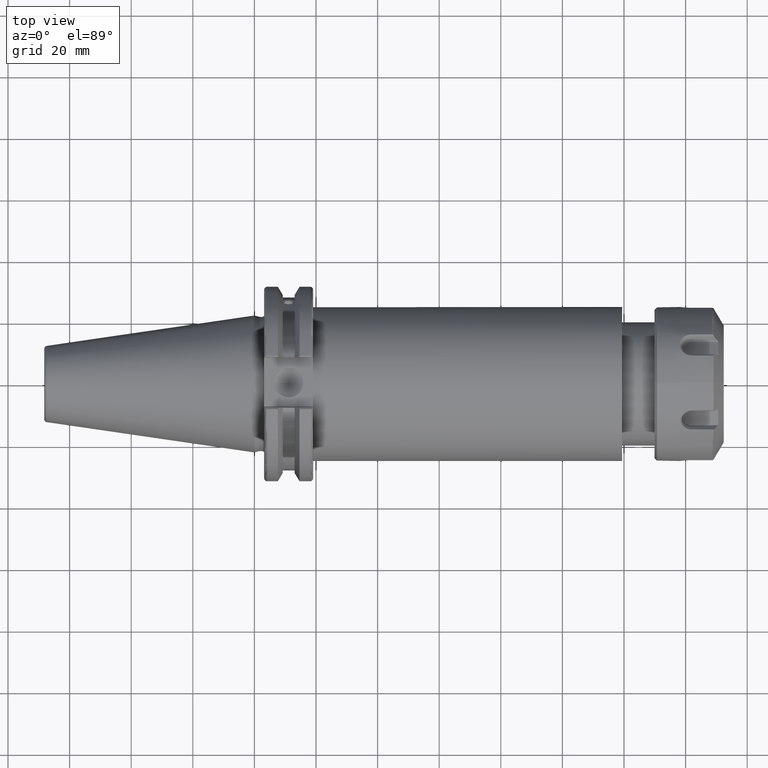
[diagram: clean part render]
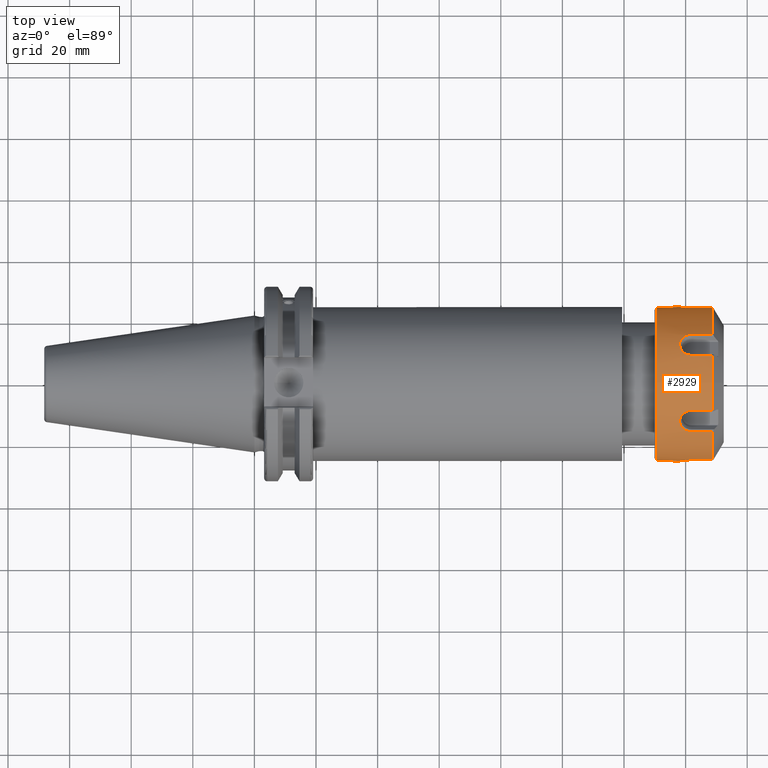
[diagram: same view with one face highlighted and labeled with its STEP entity id]
A machine part, top view. The second image highlights one B-rep face of the part: STEP entity #2929.
In plain terms, the highlighted cylindrical surface (bore or boss wall) has radius 25 mm, axis along (1, 0, 0).
Its self-contained STEP definition (entity closure, byte-faithful):
#391=FACE_OUTER_BOUND('',#579,.T.);
#579=EDGE_LOOP('',(#2475,#2476,#2477,#2478,#2479,#2480,#2481,#2482,#2483,
#2484,#2485,#2486,#2487,#2488,#2489,#2490,#2491,#2492,#2493,#2494,#2495,
#2496,#2497,#2498,#2499,#2500,#2501,#2502));
#740=CIRCLE('',#3284,25.);
#741=CIRCLE('',#3286,25.);
#742=CIRCLE('',#3287,25.);
#743=CIRCLE('',#3288,25.);
#744=CIRCLE('',#3289,25.);
#745=CIRCLE('',#3290,25.);
#746=CIRCLE('',#3291,25.);
#747=CIRCLE('',#3292,25.);
#872=LINE('',#5365,#1046);
#873=LINE('',#5370,#1047);
#874=LINE('',#5399,#1048);
#875=LINE('',#5403,#1049);
#876=LINE('',#5432,#1050);
#877=LINE('',#5436,#1051);
#878=LINE('',#5465,#1052);
#879=LINE('',#5469,#1053);
#880=LINE('',#5497,#1054);
#881=LINE('',#5499,#1055);
#882=LINE('',#5528,#1056);
#883=LINE('',#5532,#1057);
#884=LINE('',#5560,#1058);
#1046=VECTOR('',#3915,25.);
#1047=VECTOR('',#3920,6.64722344657);
#1048=VECTOR('',#3921,6.647223564864);
#1049=VECTOR('',#3924,6.647222883786);
#1050=VECTOR('',#3925,6.647222910959);
#1051=VECTOR('',#3928,6.647223440681);
#1052=VECTOR('',#3929,6.647223598116);
#1053=VECTOR('',#3932,6.647223446385);
#1054=VECTOR('',#3933,6.647223564616);
#1055=VECTOR('',#3934,6.64722288378);
#1056=VECTOR('',#3935,6.647222910886);
#1057=VECTOR('',#3938,6.647223440838);
#1058=VECTOR('',#3939,6.647223598416);
#1189=B_SPLINE_CURVE_WITH_KNOTS('',3,(#5372,#5373,#5374,#5375,#5376,#5377,
#5378,#5379,#5380,#5381,#5382,#5383,#5384,#5385,#5386,#5387,#5388,#5389,
#5390,#5391,#5392,#5393,#5394,#5395,#5396,#5397),.UNSPECIFIED.,.F.,.F.,
(4,2,2,2,2,2,2,2,2,2,2,2,4),(9.9999995238631E-7,0.0879052907423527,0.176637565379742,
0.235903650970046,0.390130017504631,0.466901397524831,0.619877047493406,
0.772895245938568,0.849748430711965,1.00354549994743,1.06255814926592,1.15065991936563,
1.23696691744975),.UNSPECIFIED.);
#1190=B_SPLINE_CURVE_WITH_KNOTS('',3,(#5405,#5406,#5407,#5408,#5409,#5410,
#5411,#5412,#5413,#5414,#5415,#5416,#5417,#5418,#5419,#5420,#5421,#5422,
#5423,#5424,#5425,#5426,#5427,#5428,#5429,#5430),.UNSPECIFIED.,.F.,.F.,
(4,2,2,2,2,2,2,2,2,2,2,2,4),(1.00000009417567E-6,0.0878138369275421,0.176555140054308,
0.235820765056358,0.389974853515028,0.466697048924996,0.619573178814066,
0.772490695512649,0.849291747057756,1.00296705428542,1.06195384990398,1.14997782321717,
1.23616298191316),.UNSPECIFIED.);
#1191=B_SPLINE_CURVE_WITH_KNOTS('',3,(#5438,#5439,#5440,#5441,#5442,#5443,
#5444,#5445,#5446,#5447,#5448,#5449,#5450,#5451,#5452,#5453,#5454,#5455,
#5456,#5457,#5458,#5459,#5460,#5461,#5462,#5463),.UNSPECIFIED.,.F.,.F.,
(4,2,2,2,2,2,2,2,2,2,2,2,4),(9.99999951775687E-7,0.0878941569707288,0.176624334532777,
0.235888687428025,0.390110943020404,0.466875792134982,0.61983845664042,
0.772844514946801,0.849692191333624,1.003474767993,1.06248200532863,1.15057983966351,
1.23688736597224),.UNSPECIFIED.);
#1192=B_SPLINE_CURVE_WITH_KNOTS('',3,(#5471,#5472,#5473,#5474,#5475,#5476,
#5477,#5478,#5479,#5480,#5481,#5482,#5483,#5484,#5485,#5486,#5487,#5488,
#5489,#5490,#5491,#5492,#5493,#5494,#5495,#5496),.UNSPECIFIED.,.F.,.F.,
(4,2,2,2,2,2,2,2,2,2,2,2,4),(9.99999952469577E-7,0.087905230227901,0.176637529735317,
0.23590362205516,0.390129919451193,0.466901259045231,0.619876828803479,
0.772894942890079,0.849748081258391,1.00354500406063,1.06255762506737,1.1506592888794,
1.2369661055211),.UNSPECIFIED.);
#1193=B_SPLINE_CURVE_WITH_KNOTS('',3,(#5501,#5502,#5503,#5504,#5505,#5506,
#5507,#5508,#5509,#5510,#5511,#5512,#5513,#5514,#5515,#5516,#5517,#5518,
#5519,#5520,#5521,#5522,#5523,#5524,#5525,#5526),.UNSPECIFIED.,.F.,.F.,
(4,2,2,2,2,2,2,2,2,2,2,2,4),(1.00000009425893E-6,0.0878137755469969,0.176555099847401,
0.235820733272125,0.389974766086827,0.466696934474965,0.619573008826759,
0.772490466286766,0.849291481801536,1.00296667617739,1.06195345833607,1.14997734942518,
1.23616236019383),.UNSPECIFIED.);
#1194=B_SPLINE_CURVE_WITH_KNOTS('',3,(#5534,#5535,#5536,#5537,#5538,#5539,
#5540,#5541,#5542,#5543,#5544,#5545,#5546,#5547,#5548,#5549,#5550,#5551,
#5552,#5553,#5554,#5555,#5556,#5557,#5558,#5559),.UNSPECIFIED.,.F.,.F.,
(4,2,2,2,2,2,2,2,2,2,2,2,4),(9.99999951900588E-7,0.0878942147625397,0.176624366940175,
0.23588871226361,0.390111034009128,0.466875921238402,0.619838663234569,
0.772844800309569,0.849692521299405,1.00347524440874,1.06248250865998,1.15058044952841,
1.2368881619258),.UNSPECIFIED.);
#1426=VERTEX_POINT('',#5341);
#1427=VERTEX_POINT('',#5342);
#1428=VERTEX_POINT('',#5361);
#1429=VERTEX_POINT('',#5362);
#1430=VERTEX_POINT('',#5364);
#1431=VERTEX_POINT('',#5367);
#1432=VERTEX_POINT('',#5369);
#1433=VERTEX_POINT('',#5371);
#1434=VERTEX_POINT('',#5398);
#1435=VERTEX_POINT('',#5400);
#1436=VERTEX_POINT('',#5402);
#1437=VERTEX_POINT('',#5404);
#1438=VERTEX_POINT('',#5431);
#1439=VERTEX_POINT('',#5433);
#1440=VERTEX_POINT('',#5435);
#1441=VERTEX_POINT('',#5437);
#1442=VERTEX_POINT('',#5464);
#1443=VERTEX_POINT('',#5466);
#1444=VERTEX_POINT('',#5468);
#1445=VERTEX_POINT('',#5470);
#1446=VERTEX_POINT('',#5498);
#1447=VERTEX_POINT('',#5500);
#1448=VERTEX_POINT('',#5527);
#1449=VERTEX_POINT('',#5529);
#1450=VERTEX_POINT('',#5531);
#1451=VERTEX_POINT('',#5533);
#1789=EDGE_CURVE('',#1426,#1427,#740,.T.);
#1792=EDGE_CURVE('',#1428,#1429,#741,.T.);
#1793=EDGE_CURVE('',#1429,#1430,#872,.T.);
#1794=EDGE_CURVE('',#1430,#1430,#742,.T.);
#1795=EDGE_CURVE('',#1429,#1431,#743,.T.);
#1796=EDGE_CURVE('',#1431,#1432,#873,.T.);
#1797=EDGE_CURVE('',#1432,#1433,#1189,.T.);
#1798=EDGE_CURVE('',#1433,#1434,#874,.T.);
#1799=EDGE_CURVE('',#1434,#1435,#744,.T.);
#1800=EDGE_CURVE('',#1435,#1436,#875,.T.);
#1801=EDGE_CURVE('',#1436,#1437,#1190,.T.);
#1802=EDGE_CURVE('',#1437,#1438,#876,.T.);
#1803=EDGE_CURVE('',#1438,#1439,#745,.T.);
#1804=EDGE_CURVE('',#1439,#1440,#877,.T.);
#1805=EDGE_CURVE('',#1440,#1441,#1191,.T.);
#1806=EDGE_CURVE('',#1441,#1442,#878,.T.);
#1807=EDGE_CURVE('',#1442,#1443,#746,.T.);
#1808=EDGE_CURVE('',#1443,#1444,#879,.T.);
#1809=EDGE_CURVE('',#1444,#1445,#1192,.T.);
#1810=EDGE_CURVE('',#1445,#1426,#880,.T.);
#1811=EDGE_CURVE('',#1427,#1446,#881,.T.);
#1812=EDGE_CURVE('',#1446,#1447,#1193,.T.);
#1813=EDGE_CURVE('',#1447,#1448,#882,.T.);
#1814=EDGE_CURVE('',#1448,#1449,#747,.T.);
#1815=EDGE_CURVE('',#1449,#1450,#883,.T.);
#1816=EDGE_CURVE('',#1450,#1451,#1194,.T.);
#1817=EDGE_CURVE('',#1451,#1428,#884,.T.);
#2475=ORIENTED_EDGE('',*,*,#1792,.T.);
#2476=ORIENTED_EDGE('',*,*,#1793,.T.);
#2477=ORIENTED_EDGE('',*,*,#1794,.F.);
#2478=ORIENTED_EDGE('',*,*,#1793,.F.);
#2479=ORIENTED_EDGE('',*,*,#1795,.T.);
#2480=ORIENTED_EDGE('',*,*,#1796,.T.);
#2481=ORIENTED_EDGE('',*,*,#1797,.T.);
#2482=ORIENTED_EDGE('',*,*,#1798,.T.);
#2483=ORIENTED_EDGE('',*,*,#1799,.T.);
#2484=ORIENTED_EDGE('',*,*,#1800,.T.);
#2485=ORIENTED_EDGE('',*,*,#1801,.T.);
#2486=ORIENTED_EDGE('',*,*,#1802,.T.);
#2487=ORIENTED_EDGE('',*,*,#1803,.T.);
#2488=ORIENTED_EDGE('',*,*,#1804,.T.);
#2489=ORIENTED_EDGE('',*,*,#1805,.T.);
#2490=ORIENTED_EDGE('',*,*,#1806,.T.);
#2491=ORIENTED_EDGE('',*,*,#1807,.T.);
#2492=ORIENTED_EDGE('',*,*,#1808,.T.);
#2493=ORIENTED_EDGE('',*,*,#1809,.T.);
#2494=ORIENTED_EDGE('',*,*,#1810,.T.);
#2495=ORIENTED_EDGE('',*,*,#1789,.T.);
#2496=ORIENTED_EDGE('',*,*,#1811,.T.);
#2497=ORIENTED_EDGE('',*,*,#1812,.T.);
#2498=ORIENTED_EDGE('',*,*,#1813,.T.);
#2499=ORIENTED_EDGE('',*,*,#1814,.T.);
#2500=ORIENTED_EDGE('',*,*,#1815,.T.);
#2501=ORIENTED_EDGE('',*,*,#1816,.T.);
#2502=ORIENTED_EDGE('',*,*,#1817,.T.);
#2816=CYLINDRICAL_SURFACE('',#3285,25.);
#2929=ADVANCED_FACE('',(#391),#2816,.T.);
#3284=AXIS2_PLACEMENT_3D('',#5343,#3909,#3910);
#3285=AXIS2_PLACEMENT_3D('',#5360,#3911,#3912);
#3286=AXIS2_PLACEMENT_3D('',#5363,#3913,#3914);
#3287=AXIS2_PLACEMENT_3D('',#5366,#3916,#3917);
#3288=AXIS2_PLACEMENT_3D('',#5368,#3918,#3919);
#3289=AXIS2_PLACEMENT_3D('',#5401,#3922,#3923);
#3290=AXIS2_PLACEMENT_3D('',#5434,#3926,#3927);
#3291=AXIS2_PLACEMENT_3D('',#5467,#3930,#3931);
#3292=AXIS2_PLACEMENT_3D('',#5530,#3936,#3937);
#3909=DIRECTION('center_axis',(-1.,0.,0.));
#3910=DIRECTION('ref_axis',(0.,-0.631277286733596,-0.775557210819595));
#3911=DIRECTION('center_axis',(1.,0.,0.));
#3912=DIRECTION('ref_axis',(0.,0.,-1.));
#3913=DIRECTION('center_axis',(-1.,0.,0.));
#3914=DIRECTION('ref_axis',(0.,0.,1.));
#3915=DIRECTION('',(-1.,0.,0.));
#3916=DIRECTION('center_axis',(-1.,0.,0.));
#3917=DIRECTION('ref_axis',(0.,0.,-1.));
#3918=DIRECTION('center_axis',(-1.,0.,0.));
#3919=DIRECTION('ref_axis',(0.,0.,1.));
#3920=DIRECTION('',(-1.,-1.159560992356E-10,2.11509500553E-11));
#3921=DIRECTION('',(1.,-1.276633033488E-10,1.526081585287E-10));
#3922=DIRECTION('center_axis',(-1.,0.,0.));
#3923=DIRECTION('ref_axis',(0.,0.631277286733596,0.775557210819595));
#3924=DIRECTION('',(-1.,7.686741409635E-11,-2.238710456628E-10));
#3925=DIRECTION('',(1.,-7.310370522877E-11,-1.968159154923E-10));
#3926=DIRECTION('center_axis',(-1.,0.,0.));
#3927=DIRECTION('ref_axis',(0.,0.987290890024773,-0.158923561733596));
#3928=DIRECTION('',(-1.,7.459753134974E-11,8.763849718101E-11));
#3929=DIRECTION('',(1.,2.171785744726E-10,3.807106787261E-11));
#3930=DIRECTION('center_axis',(-1.,0.,0.));
#3931=DIRECTION('ref_axis',(0.,0.,-1.));
#3932=DIRECTION('',(-1.,1.158545507345E-10,-2.113331268409E-11));
#3933=DIRECTION('',(1.,1.275572118917E-10,-1.524830935366E-10));
#3934=DIRECTION('',(-1.,-7.687115535743E-11,2.238859438988E-10));
#3935=DIRECTION('',(1.,7.311706687595E-11,1.968496536516E-10));
#3936=DIRECTION('center_axis',(-1.,0.,0.));
#3937=DIRECTION('ref_axis',(0.,-0.987290890024773,0.158923561733596));
#3938=DIRECTION('',(-1.,-7.46531157925E-11,-8.770583987134E-11));
#3939=DIRECTION('',(1.,-2.173739217127E-10,-3.81079460111E-11));
#5341=CARTESIAN_POINT('',(7.497223250267,-15.78193216834,-19.38893027049));
#5342=CARTESIAN_POINT('',(7.497223250267,-24.68227225062,-3.97308904334));
#5343=CARTESIAN_POINT('Origin',(7.497223250267,0.,0.));
#5360=CARTESIAN_POINT('Origin',(-11.25,0.,0.));
#5361=CARTESIAN_POINT('',(7.497223250268,-8.90034008228,23.36201931383));
#5362=CARTESIAN_POINT('',(7.497223250268,-3.06161699786838E-15,25.));
#5363=CARTESIAN_POINT('Origin',(7.497223250267,0.,0.));
#5364=CARTESIAN_POINT('',(-10.45,0.,25.));
#5365=CARTESIAN_POINT('',(-11.25,-3.06161699786838E-15,25.));
#5366=CARTESIAN_POINT('Origin',(-10.45,0.,0.));
#5367=CARTESIAN_POINT('',(7.497223250267,8.90034008228,23.36201931383));
#5368=CARTESIAN_POINT('Origin',(7.497223250267,0.,0.));
#5369=CARTESIAN_POINT('',(0.849999803697,8.900340081509,23.36201931397));
#5370=CARTESIAN_POINT('',(7.497223250267,8.90034008228,23.36201931383));
#5371=CARTESIAN_POINT('',(0.849999685403604,15.7819321692076,19.3889302699045));
#5372=CARTESIAN_POINT('Ctrl Pts',(0.849999803697697,8.90034008142218,23.3620193141567));
#5373=CARTESIAN_POINT('Ctrl Pts',(0.556988214806367,8.89906306446611,23.3625058254058));
#5374=CARTESIAN_POINT('Ctrl Pts',(0.26261724777573,8.93153175889461,23.3502062834946));
#5375=CARTESIAN_POINT('Ctrl Pts',(-0.31125534425957,9.05580002296358,23.3022952116997));
#5376=CARTESIAN_POINT('Ctrl Pts',(-0.593923216593934,9.14887656054965,23.2661811432127));
#5377=CARTESIAN_POINT('Ctrl Pts',(-1.04056938179903,9.35159728105322,23.1852381718461));
#5378=CARTESIAN_POINT('Ctrl Pts',(-1.21262512280427,9.44524603269654,23.1473582448027));
#5379=CARTESIAN_POINT('Ctrl Pts',(-1.80200428015579,9.82286285775052,22.9912699438263));
#5380=CARTESIAN_POINT('Ctrl Pts',(-2.16698210272784,10.1683862390945,22.8428160957234));
#5381=CARTESIAN_POINT('Ctrl Pts',(-2.59176378383641,10.7606138713495,22.5667088807953));
#5382=CARTESIAN_POINT('Ctrl Pts',(-2.7113454614375,10.9677985476459,22.466974573432));
#5383=CARTESIAN_POINT('Ctrl Pts',(-3.00077380839491,11.6099006832519,22.1458509566706));
#5384=CARTESIAN_POINT('Ctrl Pts',(-3.09929483965554,12.0593085624536,21.9052093593481));
#5385=CARTESIAN_POINT('Ctrl Pts',(-3.09776452633922,12.9511394909136,21.3900269627963));
#5386=CARTESIAN_POINT('Ctrl Pts',(-2.99750238481055,13.3841619924121,21.1208830779851));
#5387=CARTESIAN_POINT('Ctrl Pts',(-2.7062196300935,13.9819654737833,20.7258782143283));
#5388=CARTESIAN_POINT('Ctrl Pts',(-2.58612454090403,14.1712825668685,20.5966440251347));
#5389=CARTESIAN_POINT('Ctrl Pts',(-2.1603467743026,14.7040545894526,20.2232287059954));
#5390=CARTESIAN_POINT('Ctrl Pts',(-1.79444321211271,15.0055297377623,19.9980251897456));
#5391=CARTESIAN_POINT('Ctrl Pts',(-1.20143698934867,15.3289483623426,19.7493326814338));
#5392=CARTESIAN_POINT('Ctrl Pts',(-1.02817443647387,15.4085047352194,19.6871927068306));
#5393=CARTESIAN_POINT('Ctrl Pts',(-0.58042265698393,15.5788973434881,19.5528729525399));
#5394=CARTESIAN_POINT('Ctrl Pts',(-0.297961571865993,15.6556420407217,19.491156670446));
#5395=CARTESIAN_POINT('Ctrl Pts',(0.271006084886863,15.7568242876686,19.4094469361681));
#5396=CARTESIAN_POINT('Ctrl Pts',(0.561474266649588,15.7830370456073,19.3880309378373));
#5397=CARTESIAN_POINT('Ctrl Pts',(0.849999685406121,15.7819321695438,19.3889302695099));
#5398=CARTESIAN_POINT('',(7.497223250267,15.78193216834,19.38893027049));
#5399=CARTESIAN_POINT('',(0.8499996854036,15.78193216919,19.38893026948));
#5400=CARTESIAN_POINT('',(7.497223250267,24.68227225062,3.97308904334));
#5401=CARTESIAN_POINT('Origin',(7.497223250267,0.,0.));
#5402=CARTESIAN_POINT('',(0.850000366480997,24.6822722506958,3.97308904208401));
#5403=CARTESIAN_POINT('',(7.497223250267,24.68227225062,3.97308904334));
#5404=CARTESIAN_POINT('',(0.850000339308605,24.6822722507043,-3.97308904224118));
#5405=CARTESIAN_POINT('Ctrl Pts',(0.850000366478154,24.6822722509095,3.97308904153725));
#5406=CARTESIAN_POINT('Ctrl Pts',(0.557294497669207,24.6820409332602,3.97452607079518));
#5407=CARTESIAN_POINT('Ctrl Pts',(0.263034905527892,24.6876282992806,3.94022707287879));
#5408=CARTESIAN_POINT('Ctrl Pts',(-0.310624708582617,24.7082532173941,3.80876574427735));
#5409=CARTESIAN_POINT('Ctrl Pts',(-0.593535322999683,24.7235180287989,3.71009378532804));
#5410=CARTESIAN_POINT('Ctrl Pts',(-1.04042566812709,24.7547905938333,3.49399302569406));
#5411=CARTESIAN_POINT('Ctrl Pts',(-1.21254919832008,24.7688154773776,3.39391485580949));
#5412=CARTESIAN_POINT('Ctrl Pts',(-1.80198115808831,24.8224544368331,2.98879308315158));
#5413=CARTESIAN_POINT('Ctrl Pts',(-2.16697388575954,24.8666505619373,2.61535441741271));
#5414=CARTESIAN_POINT('Ctrl Pts',(-2.59178778931038,24.92365351717,1.96434603146938));
#5415=CARTESIAN_POINT('Ctrl Pts',(-2.71136848645338,24.9408733026292,1.73504792986882));
#5416=CARTESIAN_POINT('Ctrl Pts',(-3.00078606826906,24.9838218195907,1.01840807604434));
#5417=CARTESIAN_POINT('Ctrl Pts',(-3.0993028419261,25.0001233489757,0.508880440566308));
#5418=CARTESIAN_POINT('Ctrl Pts',(-3.09775592856053,24.9998751658127,-0.521068163364782));
#5419=CARTESIAN_POINT('Ctrl Pts',(-2.99748962718334,24.9833001654694,-1.03064042731025));
#5420=CARTESIAN_POINT('Ctrl Pts',(-2.70618364407116,24.9401147277223,-1.74587069260613));
#5421=CARTESIAN_POINT('Ctrl Pts',(-2.58608154336521,24.9228521354282,-1.97444615940644));
#5422=CARTESIAN_POINT('Ctrl Pts',(-2.16030739196055,24.8658522836497,-2.62250914857131));
#5423=CARTESIAN_POINT('Ctrl Pts',(-1.79436689913953,24.8215515646109,-2.99625080202018));
#5424=CARTESIAN_POINT('Ctrl Pts',(-1.20119063797433,24.7678777919271,-3.40074094799123));
#5425=CARTESIAN_POINT('Ctrl Pts',(-1.02780726547281,24.7538337943837,-3.5007558388354));
#5426=CARTESIAN_POINT('Ctrl Pts',(-0.57993242825243,24.7227037314635,-3.71548078628951));
#5427=CARTESIAN_POINT('Ctrl Pts',(-0.297500400940775,24.7076344943419,-3.8127559573514));
#5428=CARTESIAN_POINT('Ctrl Pts',(0.271335149640932,24.6874811043476,-3.94111771153634));
#5429=CARTESIAN_POINT('Ctrl Pts',(0.561629895983728,24.6820500906169,-3.97446918196907));
#5430=CARTESIAN_POINT('Ctrl Pts',(0.850000339305959,24.6822722508806,-3.97308904171685));
#5431=CARTESIAN_POINT('',(7.497223250268,24.68227225062,-3.97308904334));
#5432=CARTESIAN_POINT('',(0.8500003393086,24.68227225111,-3.973089042032));
#5433=CARTESIAN_POINT('',(7.497223250267,15.78193216834,-19.38893027049));
#5434=CARTESIAN_POINT('Origin',(7.497223250267,0.,0.));
#5435=CARTESIAN_POINT('',(0.8499998095868,15.78193216884,-19.38893026991));
#5436=CARTESIAN_POINT('',(7.497223250267,15.78193216834,-19.38893027049));
#5437=CARTESIAN_POINT('',(0.849999652151898,8.9003400812355,-23.3620193143348));
#5438=CARTESIAN_POINT('Ctrl Pts',(0.849999809587455,15.7819321690314,-19.388930269927));
#5439=CARTESIAN_POINT('Ctrl Pts',(0.557025369885156,15.7829980050107,-19.3880627155599));
#5440=CARTESIAN_POINT('Ctrl Pts',(0.262675665419089,15.7561118985817,-19.4100316628817));
#5441=CARTESIAN_POINT('Ctrl Pts',(-0.311159833993218,15.6525006411461,-19.4936835675112));
#5442=CARTESIAN_POINT('Ctrl Pts',(-0.593840633201923,15.5746913168734,-19.5562296068684));
#5443=CARTESIAN_POINT('Ctrl Pts',(-1.04049668297782,15.403239164722,-19.6913144147476));
#5444=CARTESIAN_POINT('Ctrl Pts',(-1.21255491236126,15.3236123662618,-19.7534748809016));
#5445=CARTESIAN_POINT('Ctrl Pts',(-1.80194679962227,14.9996337962951,-20.0024526328214));
#5446=CARTESIAN_POINT('Ctrl Pts',(-2.1669397631711,14.6983102699169,-20.2274569151732));
#5447=CARTESIAN_POINT('Ctrl Pts',(-2.59173725648885,14.1630745020536,-20.6022930459227));
#5448=CARTESIAN_POINT('Ctrl Pts',(-2.71132198135434,13.9731117990341,-20.7318522175723));
#5449=CARTESIAN_POINT('Ctrl Pts',(-3.00075773487278,13.373969361295,-21.1273624749268));
#5450=CARTESIAN_POINT('Ctrl Pts',(-3.09928659367179,12.9408668890439,-21.3962398800997));
#5451=CARTESIAN_POINT('Ctrl Pts',(-3.097773088459,12.0487946985416,-21.910997549218));
#5452=CARTESIAN_POINT('Ctrl Pts',(-2.99751888676549,11.5991963059453,-22.1514365564187));
#5453=CARTESIAN_POINT('Ctrl Pts',(-2.70624789524791,10.9582063227418,-22.4716510718305));
#5454=CARTESIAN_POINT('Ctrl Pts',(-2.58615666054098,10.7516266524235,-22.5709884782248));
#5455=CARTESIAN_POINT('Ctrl Pts',(-2.16039048328996,10.1618512048838,-22.8456774849883));
#5456=CARTESIAN_POINT('Ctrl Pts',(-1.7945021387392,9.81608449697471,-22.9941606065572));
#5457=CARTESIAN_POINT('Ctrl Pts',(-1.20151793692967,9.4389954616508,-23.1499063580654));
#5458=CARTESIAN_POINT('Ctrl Pts',(-1.028263612225,9.34540144282152,-23.1877348445077));
#5459=CARTESIAN_POINT('Ctrl Pts',(-0.580512521766439,9.14386869688795,-23.2681445561124));
#5460=CARTESIAN_POINT('Ctrl Pts',(-0.298040711577729,9.05203886583955,-23.3037531206632));
#5461=CARTESIAN_POINT('Ctrl Pts',(0.27095582987275,8.93066685711114,-23.3505317486243));
#5462=CARTESIAN_POINT('Ctrl Pts',(0.561450721911353,8.89900623363858,-23.3625274765176));
#5463=CARTESIAN_POINT('Ctrl Pts',(0.849999652154695,8.90034008067135,-23.3620193144427));
#5464=CARTESIAN_POINT('',(7.497223250268,8.90034008228,-23.36201931383));
#5465=CARTESIAN_POINT('',(0.8499996521519,8.900340080836,-23.36201931408));
#5466=CARTESIAN_POINT('',(7.497223250267,-8.90034008228,-23.36201931383));
#5467=CARTESIAN_POINT('Origin',(7.497223250267,0.,0.));
#5468=CARTESIAN_POINT('',(0.849999803882,-8.90034008151,-23.36201931397));
#5469=CARTESIAN_POINT('',(7.497223250267,-8.90034008228,-23.36201931383));
#5470=CARTESIAN_POINT('',(0.849999685651404,-15.7819321692076,-19.3889302699042));
#5471=CARTESIAN_POINT('Ctrl Pts',(0.849999803882699,-8.90034008142275,-23.3620193141565));
#5472=CARTESIAN_POINT('Ctrl Pts',(0.556988417090433,-8.89906298797539,-23.3625058545468));
#5473=CARTESIAN_POINT('Ctrl Pts',(0.262617484675315,-8.93153172454629,-23.350206296481));
#5474=CARTESIAN_POINT('Ctrl Pts',(-0.31125503345258,-9.05579994887462,-23.3022952405232));
#5475=CARTESIAN_POINT('Ctrl Pts',(-0.593923175177775,-9.14887653203464,
-23.2661811549686));
#5476=CARTESIAN_POINT('Ctrl Pts',(-1.04056961939119,-9.35159738833183,-23.1852381287642));
#5477=CARTESIAN_POINT('Ctrl Pts',(-1.21262543478727,-9.44524620134965,-23.1473581763874));
#5478=CARTESIAN_POINT('Ctrl Pts',(-1.80200461178382,-9.82286314551591,-22.9912698215014));
#5479=CARTESIAN_POINT('Ctrl Pts',(-2.16698238730809,-10.1683865399387,-22.842815963009));
#5480=CARTESIAN_POINT('Ctrl Pts',(-2.59176401185802,-10.7606142381187,-22.5667087060453));
#5481=CARTESIAN_POINT('Ctrl Pts',(-2.71134566157983,-10.9677989211266,-22.4669743912144));
#5482=CARTESIAN_POINT('Ctrl Pts',(-3.00077392462613,-11.6099010788075,-22.145850749752));
#5483=CARTESIAN_POINT('Ctrl Pts',(-3.09929490237588,-12.0593089791445,-21.9052091303768));
#5484=CARTESIAN_POINT('Ctrl Pts',(-3.09776446127798,-12.9511399168306,-21.3900267050165));
#5485=CARTESIAN_POINT('Ctrl Pts',(-2.99750226544645,-13.3841623896175,-21.1208828264868));
#5486=CARTESIAN_POINT('Ctrl Pts',(-2.70621940029455,-13.981965864473,-20.7258779506717));
#5487=CARTESIAN_POINT('Ctrl Pts',(-2.58612428050563,-14.1712829492659,-20.5966437619939));
#5488=CARTESIAN_POINT('Ctrl Pts',(-2.16034649156988,-14.7040548326557,-20.2232285257743));
#5489=CARTESIAN_POINT('Ctrl Pts',(-1.79444286027964,-15.0055300282739,-19.9980249715318));
#5490=CARTESIAN_POINT('Ctrl Pts',(-1.20143633648498,-15.3289486747771,-19.7493324392019));
#5491=CARTESIAN_POINT('Ctrl Pts',(-1.02817358892061,-15.4085050936274,-19.6871924264029));
#5492=CARTESIAN_POINT('Ctrl Pts',(-0.580421638460918,-15.578897663397,-19.5528726972162));
#5493=CARTESIAN_POINT('Ctrl Pts',(-0.29796063247918,-15.6556422784557,-19.4911564791808));
#5494=CARTESIAN_POINT('Ctrl Pts',(0.271006732571219,-15.7568243368419,-19.4094468957558));
#5495=CARTESIAN_POINT('Ctrl Pts',(0.561474566374845,-15.783037008791,-19.3880309678045));
#5496=CARTESIAN_POINT('Ctrl Pts',(0.849999685653918,-15.7819321695437,-19.3889302695101));
#5497=CARTESIAN_POINT('',(0.8499996856514,-15.78193216919,-19.38893026948));
#5498=CARTESIAN_POINT('',(0.850000366487002,-24.6822722506944,-3.97308904208506));
#5499=CARTESIAN_POINT('',(7.497223250267,-24.68227225062,-3.97308904334));
#5500=CARTESIAN_POINT('',(0.850000339381803,-24.6822722507043,3.97308904224024));
#5501=CARTESIAN_POINT('Ctrl Pts',(0.850000366484182,-24.6822722509085,-3.97308904154322));
#5502=CARTESIAN_POINT('Ctrl Pts',(0.557294702605885,-24.6820409227316,-3.9745261362024));
#5503=CARTESIAN_POINT('Ctrl Pts',(0.263035170971378,-24.6876282932209,-3.94022710982265));
#5504=CARTESIAN_POINT('Ctrl Pts',(-0.310624355114414,-24.7082532025874,
-3.80876584035195));
#5505=CARTESIAN_POINT('Ctrl Pts',(-0.593535201964998,-24.723518019902,-3.71009384760263));
#5506=CARTESIAN_POINT('Ctrl Pts',(-1.04042581583032,-24.7547906037586,-3.49399295657698));
#5507=CARTESIAN_POINT('Ctrl Pts',(-1.21254943345289,-24.7688154964352,-3.39391471935169));
#5508=CARTESIAN_POINT('Ctrl Pts',(-1.80198145796997,-24.8224544699939,-2.98879281324205));
#5509=CARTESIAN_POINT('Ctrl Pts',(-2.1669741424005,-24.8666505944732,-2.61535411204491));
#5510=CARTESIAN_POINT('Ctrl Pts',(-2.5917879829837,-24.9236535443726,-1.96434568784534));
#5511=CARTESIAN_POINT('Ctrl Pts',(-2.71136865435767,-24.9408733268036,-1.73504758349885));
#5512=CARTESIAN_POINT('Ctrl Pts',(-3.00078616250206,-24.983821834725,-1.01840770992754));
#5513=CARTESIAN_POINT('Ctrl Pts',(-3.099302894733,-25.0001233574372,-0.508880044269458));
#5514=CARTESIAN_POINT('Ctrl Pts',(-3.09775587354793,-24.9998751571517,0.521068585587671));
#5515=CARTESIAN_POINT('Ctrl Pts',(-2.9974895308937,-24.9833001498174,1.03064081999437));
#5516=CARTESIAN_POINT('Ctrl Pts',(-2.70618343974291,-24.9401146985933,1.74587110800806));
#5517=CARTESIAN_POINT('Ctrl Pts',(-2.58608130801534,-24.922852102263,1.97444657782198));
#5518=CARTESIAN_POINT('Ctrl Pts',(-2.16030712376141,-24.8658522502598,2.62250944547686));
#5519=CARTESIAN_POINT('Ctrl Pts',(-1.79436656231922,-24.821551523842,2.99625113685204));
#5520=CARTESIAN_POINT('Ctrl Pts',(-1.20119005677232,-24.7678777440183,3.40074129844431));
#5521=CARTESIAN_POINT('Ctrl Pts',(-1.02780650851633,-24.7538337373964,3.50075624225715));
#5522=CARTESIAN_POINT('Ctrl Pts',(-0.579931522851014,-24.722703677284,3.7154811445682));
#5523=CARTESIAN_POINT('Ctrl Pts',(-0.297499575773513,-24.7076344531182,
3.81275622307523));
#5524=CARTESIAN_POINT('Ctrl Pts',(0.271335721323621,-24.6874810952106,3.94111776663741));
#5525=CARTESIAN_POINT('Ctrl Pts',(0.561630156143936,-24.6820500978386,3.97446913710484));
#5526=CARTESIAN_POINT('Ctrl Pts',(0.850000339379152,-24.6822722508809,3.97308904171478));
#5527=CARTESIAN_POINT('',(7.497223250268,-24.68227225062,3.97308904334));
#5528=CARTESIAN_POINT('',(0.8500003393818,-24.68227225111,3.973089042031));
#5529=CARTESIAN_POINT('',(7.497223250267,-15.78193216834,19.38893027049));
#5530=CARTESIAN_POINT('Origin',(7.497223250267,0.,0.));
#5531=CARTESIAN_POINT('',(0.8499998094295,-15.78193216884,19.38893026991));
#5532=CARTESIAN_POINT('',(7.497223250267,-15.78193216834,19.38893027049));
#5533=CARTESIAN_POINT('',(0.849999651852296,-8.90034008123596,23.3620193143355));
#5534=CARTESIAN_POINT('Ctrl Pts',(0.849999809430154,-15.7819321690312,19.3889302699272));
#5535=CARTESIAN_POINT('Ctrl Pts',(0.557025176716573,-15.7829979439113,19.3880627652928));
#5536=CARTESIAN_POINT('Ctrl Pts',(0.262675441155053,-15.7561118716186,19.4100316849424));
#5537=CARTESIAN_POINT('Ctrl Pts',(-0.311160122982868,-15.6525005835907,
19.4936836136848));
#5538=CARTESIAN_POINT('Ctrl Pts',(-0.593840657899816,-15.5746912975547,
19.5562296216016));
#5539=CARTESIAN_POINT('Ctrl Pts',(-1.04049643030193,-15.4032392626439,19.6913143379221));
#5540=CARTESIAN_POINT('Ctrl Pts',(-1.21255458411809,-15.3236125181208,19.7534747626191));
#5541=CARTESIAN_POINT('Ctrl Pts',(-1.80194644863257,-14.9996340588767,20.0024524351356));
#5542=CARTESIAN_POINT('Ctrl Pts',(-2.16693946096328,-14.6983105528687,20.2274567082299));
#5543=CARTESIAN_POINT('Ctrl Pts',(-2.59173701581922,-14.1630748551654,20.6022928030051));
#5544=CARTESIAN_POINT('Ctrl Pts',(-2.71132176997088,-13.9731121627719,20.7318519722849));
#5545=CARTESIAN_POINT('Ctrl Pts',(-3.00075761371708,-13.3739697563675,21.1273622244387));
#5546=CARTESIAN_POINT('Ctrl Pts',(-3.09928652935458,-12.9408673106324,21.3962396247926));
#5547=CARTESIAN_POINT('Ctrl Pts',(-3.09777315511812,-12.0487951500806,21.9109973007026));
#5548=CARTESIAN_POINT('Ctrl Pts',(-2.99751901139665,-11.5991967419954,22.1514363278298));
#5549=CARTESIAN_POINT('Ctrl Pts',(-2.70624813634038,-10.958206767372,22.4716508551115));
#5550=CARTESIAN_POINT('Ctrl Pts',(-2.58615693282283,-10.7516270905343,22.5709882695758));
#5551=CARTESIAN_POINT('Ctrl Pts',(-2.16039077508482,-10.1618514895994,22.8456773615828));
#5552=CARTESIAN_POINT('Ctrl Pts',(-1.79450249984228,-9.81608484131413,22.994160459751));
#5553=CARTESIAN_POINT('Ctrl Pts',(-1.20151861412989,-9.43899584111834,23.1499062030972));
#5554=CARTESIAN_POINT('Ctrl Pts',(-1.02826449407105,-9.34540188189384,23.1877346674683));
#5555=CARTESIAN_POINT('Ctrl Pts',(-0.580513586069658,-9.14386909545676,
23.2681443998544));
#5556=CARTESIAN_POINT('Ctrl Pts',(-0.29804169637308,-9.05203916401583,23.303753005114));
#5557=CARTESIAN_POINT('Ctrl Pts',(0.27095515048919,-8.93066691968988,23.3505317251203));
#5558=CARTESIAN_POINT('Ctrl Pts',(0.561450406477078,-8.89900618790939,23.3625274939392));
#5559=CARTESIAN_POINT('Ctrl Pts',(0.849999651855094,-8.90034008067152,23.3620193144427));
#5560=CARTESIAN_POINT('',(0.8499996518523,-8.900340080835,23.36201931408));